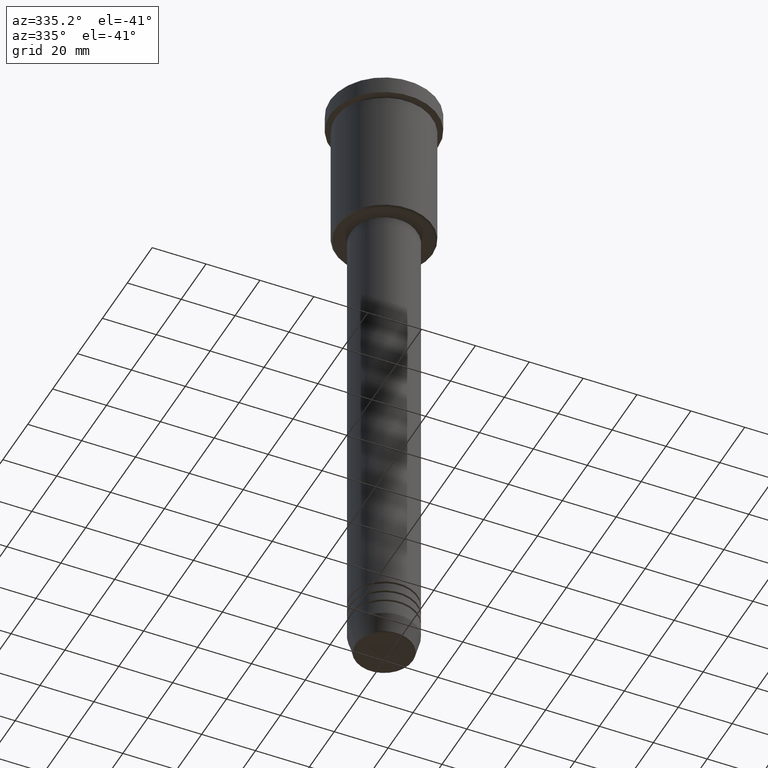
[diagram: clean part render]
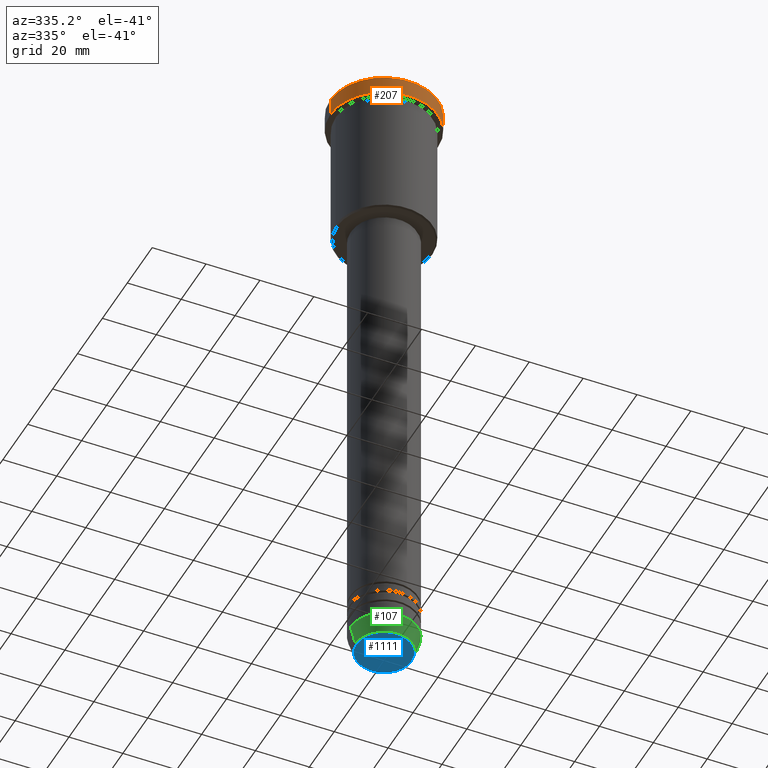
[diagram: same view with three faces highlighted in distinct colors, each labeled with its STEP entity id]
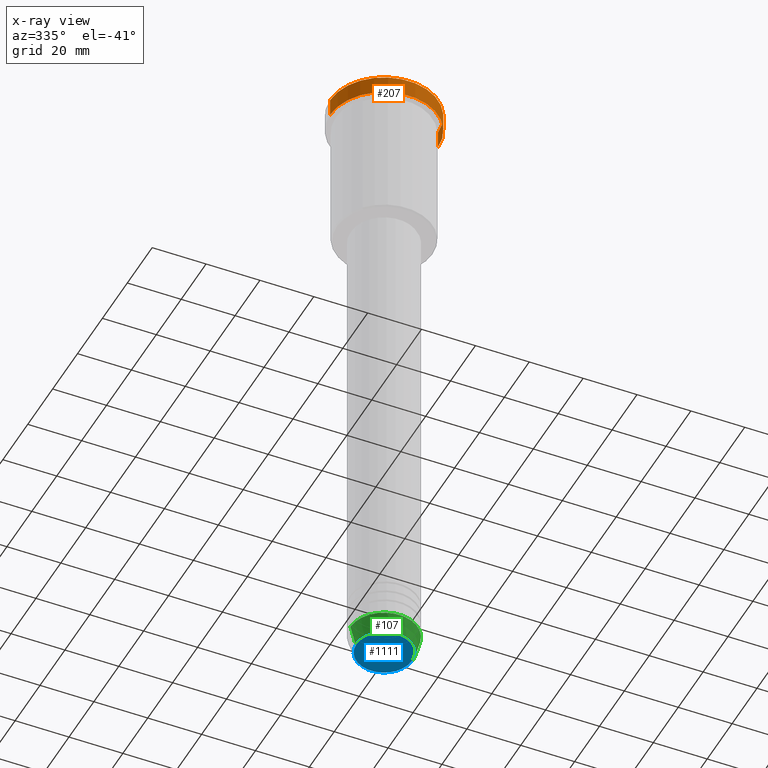
[diagram: x-ray of the same camera — body ghosted, the three highlighted faces saturated]
A machine part, auxiliary view with three faces highlighted in distinct colors.
The next image is the same camera in x-ray (body ghosted, the three faces saturated) — at least one of them is partly hidden behind the body in this view.
Their STEP definitions:

[orange] entity #207 — the highlighted cylindrical surface (partial cylindrical patch) has radius 20 mm, axis along (-0, -0, 1).
#32 = LINE ( 'NONE', #199, #615 ) ;
#34 = ORIENTED_EDGE ( 'NONE', *, *, #364, .T. ) ;
#37 = CARTESIAN_POINT ( 'NONE',  ( 0.000000000000000000, 0.000000000000000000, -6.999999999999995559 ) ) ;
#42 = DIRECTION ( 'NONE',  ( -0.000000000000000000, -0.000000000000000000, 1.000000000000000000 ) ) ;
#54 = DIRECTION ( 'NONE',  ( 1.000000000000000000, 0.000000000000000000, 0.000000000000000000 ) ) ;
#120 = EDGE_CURVE ( 'NONE', #1016, #849, #580, .T. ) ;
#172 = AXIS2_PLACEMENT_3D ( 'NONE', #855, #42, #393 ) ;
#199 = CARTESIAN_POINT ( 'NONE',  ( 20.00000000000000000, 0.000000000000000000, 0.000000000000000000 ) ) ;
#207 = ADVANCED_FACE ( 'NONE', ( #943 ), #398, .T. ) ;
#212 = ORIENTED_EDGE ( 'NONE', *, *, #738, .T. ) ;
#241 = DIRECTION ( 'NONE',  ( -0.000000000000000000, -0.000000000000000000, 1.000000000000000000 ) ) ;
#275 = ORIENTED_EDGE ( 'NONE', *, *, #120, .T. ) ;
#351 = ORIENTED_EDGE ( 'NONE', *, *, #1145, .F. ) ;
#357 = CARTESIAN_POINT ( 'NONE',  ( -20.00000000000000000, 2.449293598294706513E-15, 0.000000000000000000 ) ) ;
#364 = EDGE_CURVE ( 'NONE', #816, #634, #924, .T. ) ;
#372 = AXIS2_PLACEMENT_3D ( 'NONE', #37, #241, #590 ) ;
#393 = DIRECTION ( 'NONE',  ( 1.000000000000000000, 0.000000000000000000, 0.000000000000000000 ) ) ;
#398 = CYLINDRICAL_SURFACE ( 'NONE', #172, 20.00000000000000000 ) ;
#422 = CARTESIAN_POINT ( 'NONE',  ( 20.00000000000000000, 0.000000000000000000, -6.999999999999995559 ) ) ;
#493 = DIRECTION ( 'NONE',  ( 0.000000000000000000, 0.000000000000000000, -1.000000000000000000 ) ) ;
#505 = AXIS2_PLACEMENT_3D ( 'NONE', #867, #493, #54 ) ;
#580 = CIRCLE ( 'NONE', #372, 20.00000000000000000 ) ;
#590 = DIRECTION ( 'NONE',  ( 1.000000000000000000, 0.000000000000000000, 0.000000000000000000 ) ) ;
#615 = VECTOR ( 'NONE', #1024, 1000.000000000000000 ) ;
#629 = EDGE_LOOP ( 'NONE', ( #351, #275, #212, #34 ) ) ;
#634 = VERTEX_POINT ( 'NONE', #730 ) ;
#723 = DIRECTION ( 'NONE',  ( -0.000000000000000000, -0.000000000000000000, 1.000000000000000000 ) ) ;
#730 = CARTESIAN_POINT ( 'NONE',  ( -20.00000000000000000, 2.449293598294706513E-15, -0.4999999999999692468 ) ) ;
#738 = EDGE_CURVE ( 'NONE', #849, #816, #32, .T. ) ;
#809 = CARTESIAN_POINT ( 'NONE',  ( -20.00000000000000000, 2.449293598294706513E-15, -6.999999999999995559 ) ) ;
#816 = VERTEX_POINT ( 'NONE', #1015 ) ;
#822 = VECTOR ( 'NONE', #723, 1000.000000000000000 ) ;
#849 = VERTEX_POINT ( 'NONE', #422 ) ;
#855 = CARTESIAN_POINT ( 'NONE',  ( 0.000000000000000000, 0.000000000000000000, 0.000000000000000000 ) ) ;
#867 = CARTESIAN_POINT ( 'NONE',  ( 0.000000000000000000, 0.000000000000000000, -0.4999999999999692468 ) ) ;
#924 = CIRCLE ( 'NONE', #505, 20.00000000000000000 ) ;
#943 = FACE_OUTER_BOUND ( 'NONE', #629, .T. ) ;
#1015 = CARTESIAN_POINT ( 'NONE',  ( 20.00000000000000000, 0.000000000000000000, -0.4999999999999692468 ) ) ;
#1016 = VERTEX_POINT ( 'NONE', #809 ) ;
#1024 = DIRECTION ( 'NONE',  ( -0.000000000000000000, -0.000000000000000000, 1.000000000000000000 ) ) ;
#1031 = LINE ( 'NONE', #357, #822 ) ;
#1145 = EDGE_CURVE ( 'NONE', #1016, #634, #1031, .T. ) ;

[blue] entity #1111 — the highlighted planar face has unit normal (0, -0, 1).
#40 = EDGE_LOOP ( 'NONE', ( #377, #828 ) ) ;
#47 = CIRCLE ( 'NONE', #369, 10.24069215899266538 ) ;
#271 = DIRECTION ( 'NONE',  ( 1.000000000000000000, 0.000000000000000000, 0.000000000000000000 ) ) ;
#300 = DIRECTION ( 'NONE',  ( 0.000000000000000000, -0.000000000000000000, 1.000000000000000000 ) ) ;
#340 = AXIS2_PLACEMENT_3D ( 'NONE', #1097, #696, #871 ) ;
#369 = AXIS2_PLACEMENT_3D ( 'NONE', #728, #1004, #639 ) ;
#377 = ORIENTED_EDGE ( 'NONE', *, *, #527, .T. ) ;
#527 = EDGE_CURVE ( 'NONE', #1071, #797, #47, .T. ) ;
#554 = CIRCLE ( 'NONE', #340, 10.24069215899266538 ) ;
#562 = CARTESIAN_POINT ( 'NONE',  ( 0.000000000000000000, 0.000000000000000000, -240.0000000000000000 ) ) ;
#639 = DIRECTION ( 'NONE',  ( 1.000000000000000000, 0.000000000000000000, 0.000000000000000000 ) ) ;
#654 = CARTESIAN_POINT ( 'NONE',  ( -10.24069215899266538, 1.283696036640842967E-15, -240.0000000000000000 ) ) ;
#696 = DIRECTION ( 'NONE',  ( 0.000000000000000000, 0.000000000000000000, -1.000000000000000000 ) ) ;
#711 = FACE_OUTER_BOUND ( 'NONE', #40, .T. ) ;
#728 = CARTESIAN_POINT ( 'NONE',  ( 0.000000000000000000, 0.000000000000000000, -240.0000000000000000 ) ) ;
#755 = PLANE ( 'NONE',  #991 ) ;
#797 = VERTEX_POINT ( 'NONE', #654 ) ;
#828 = ORIENTED_EDGE ( 'NONE', *, *, #952, .T. ) ;
#871 = DIRECTION ( 'NONE',  ( 1.000000000000000000, 0.000000000000000000, 0.000000000000000000 ) ) ;
#952 = EDGE_CURVE ( 'NONE', #797, #1071, #554, .T. ) ;
#982 = CARTESIAN_POINT ( 'NONE',  ( 10.24069215899266538, 0.000000000000000000, -240.0000000000000000 ) ) ;
#991 = AXIS2_PLACEMENT_3D ( 'NONE', #562, #300, #271 ) ;
#1004 = DIRECTION ( 'NONE',  ( 0.000000000000000000, 0.000000000000000000, -1.000000000000000000 ) ) ;
#1071 = VERTEX_POINT ( 'NONE', #982 ) ;
#1097 = CARTESIAN_POINT ( 'NONE',  ( 0.000000000000000000, 0.000000000000000000, -240.0000000000000000 ) ) ;
#1111 = ADVANCED_FACE ( 'NONE', ( #711 ), #755, .F. ) ;

[green] entity #107 — the highlighted conical surface has half-angle 15 deg.
#29 = EDGE_CURVE ( 'NONE', #1010, #278, #1118, .T. ) ;
#57 = VERTEX_POINT ( 'NONE', #400 ) ;
#59 = CARTESIAN_POINT ( 'NONE',  ( 0.000000000000000000, 0.000000000000000000, -233.0000000000000000 ) ) ;
#107 = ADVANCED_FACE ( 'NONE', ( #692 ), #638, .T. ) ;
#173 = AXIS2_PLACEMENT_3D ( 'NONE', #677, #974, #423 ) ;
#240 = ORIENTED_EDGE ( 'NONE', *, *, #345, .T. ) ;
#245 = VERTEX_POINT ( 'NONE', #267 ) ;
#267 = CARTESIAN_POINT ( 'NONE',  ( 12.50000000000000000, 0.000000000000000000, -233.0000000000000000 ) ) ;
#272 = CARTESIAN_POINT ( 'NONE',  ( -12.50000000000000000, 1.530808498934191521E-15, -233.0000000000000000 ) ) ;
#278 = VERTEX_POINT ( 'NONE', #473 ) ;
#286 = EDGE_LOOP ( 'NONE', ( #458, #240, #932, #914 ) ) ;
#293 = DIRECTION ( 'NONE',  ( -0.2588190451025213501, 3.169619151431772337E-17, 0.9659258262890680902 ) ) ;
#299 = LINE ( 'NONE', #561, #1077 ) ;
#345 = EDGE_CURVE ( 'NONE', #1010, #57, #1095, .T. ) ;
#385 = DIRECTION ( 'NONE',  ( -0.000000000000000000, -0.000000000000000000, 1.000000000000000000 ) ) ;
#400 = CARTESIAN_POINT ( 'NONE',  ( 10.72365507213719127, 0.000000000000000000, -239.6294095225512706 ) ) ;
#423 = DIRECTION ( 'NONE',  ( 1.000000000000000000, 0.000000000000000000, 0.000000000000000000 ) ) ;
#458 = ORIENTED_EDGE ( 'NONE', *, *, #29, .F. ) ;
#473 = CARTESIAN_POINT ( 'NONE',  ( -12.50000000000000000, 1.530808498934191521E-15, -233.0000000000000000 ) ) ;
#488 = EDGE_CURVE ( 'NONE', #57, #245, #299, .T. ) ;
#561 = CARTESIAN_POINT ( 'NONE',  ( 12.50000000000000000, 0.000000000000000000, -233.0000000000000000 ) ) ;
#638 = CONICAL_SURFACE ( 'NONE', #1093, 12.50000000000000000, 0.2617993877991500740 ) ;
#666 = DIRECTION ( 'NONE',  ( 0.2588190451025213501, 0.000000000000000000, 0.9659258262890680902 ) ) ;
#677 = CARTESIAN_POINT ( 'NONE',  ( 0.000000000000000000, 0.000000000000000000, -239.6294095225512706 ) ) ;
#680 = AXIS2_PLACEMENT_3D ( 'NONE', #817, #385, #937 ) ;
#692 = FACE_OUTER_BOUND ( 'NONE', #286, .T. ) ;
#776 = DIRECTION ( 'NONE',  ( -0.000000000000000000, -0.000000000000000000, 1.000000000000000000 ) ) ;
#787 = CIRCLE ( 'NONE', #680, 12.50000000000000000 ) ;
#817 = CARTESIAN_POINT ( 'NONE',  ( 0.000000000000000000, 0.000000000000000000, -233.0000000000000000 ) ) ;
#860 = VECTOR ( 'NONE', #293, 1000.000000000000000 ) ;
#914 = ORIENTED_EDGE ( 'NONE', *, *, #1106, .F. ) ;
#932 = ORIENTED_EDGE ( 'NONE', *, *, #488, .T. ) ;
#937 = DIRECTION ( 'NONE',  ( 1.000000000000000000, 0.000000000000000000, 0.000000000000000000 ) ) ;
#974 = DIRECTION ( 'NONE',  ( -0.000000000000000000, -0.000000000000000000, 1.000000000000000000 ) ) ;
#976 = CARTESIAN_POINT ( 'NONE',  ( -10.72365507213719127, 1.422038742429750516E-15, -239.6294095225512706 ) ) ;
#1010 = VERTEX_POINT ( 'NONE', #976 ) ;
#1077 = VECTOR ( 'NONE', #666, 1000.000000000000000 ) ;
#1093 = AXIS2_PLACEMENT_3D ( 'NONE', #59, #776, #1139 ) ;
#1095 = CIRCLE ( 'NONE', #173, 10.72365507213719127 ) ;
#1106 = EDGE_CURVE ( 'NONE', #278, #245, #787, .T. ) ;
#1118 = LINE ( 'NONE', #272, #860 ) ;
#1139 = DIRECTION ( 'NONE',  ( 1.000000000000000000, 0.000000000000000000, 0.000000000000000000 ) ) ;